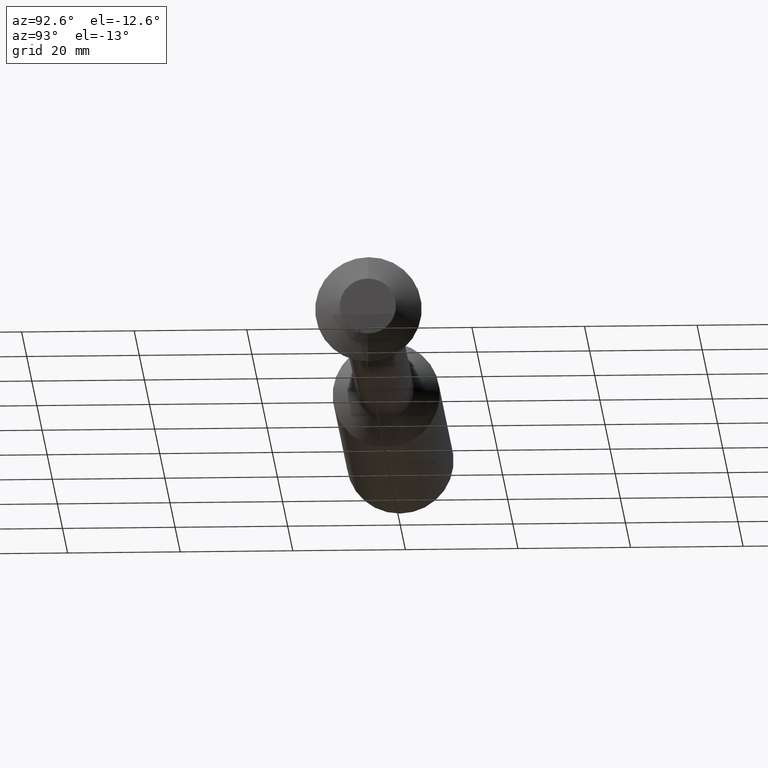
[diagram: clean part render]
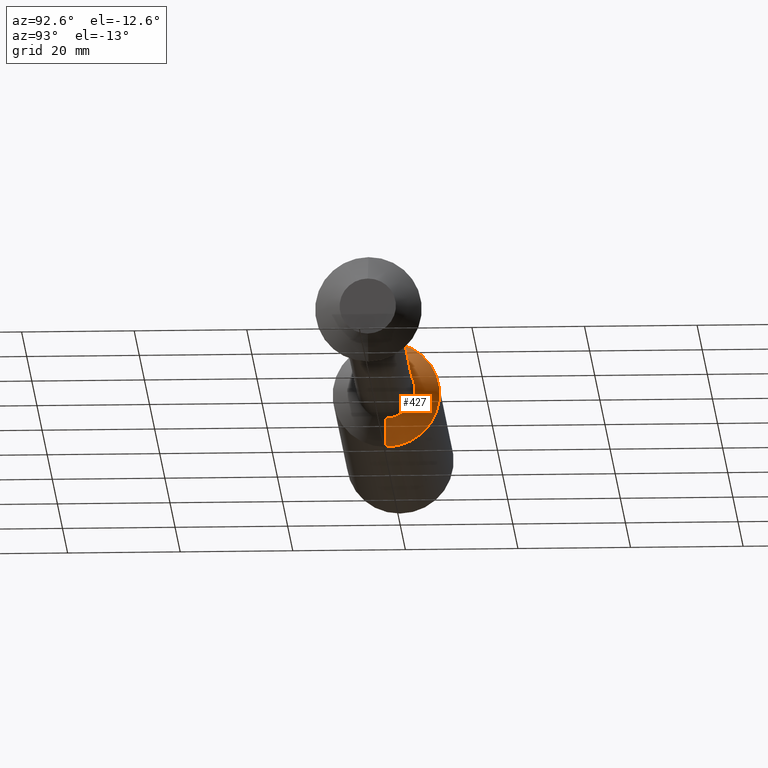
[diagram: same view with one face highlighted and labeled with its STEP entity id]
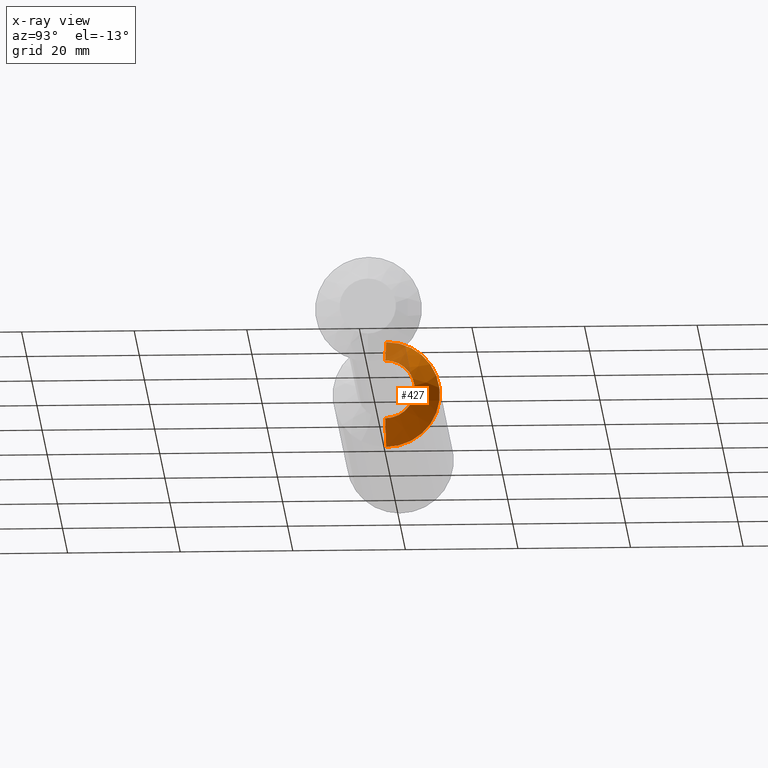
[diagram: x-ray of the same camera — body ghosted, the highlighted face saturated]
A machine part, auxiliary view. The second image highlights one B-rep face of the part: STEP entity #427.
The next image is the same camera in x-ray: the body ghosted, the highlighted face saturated — about 14% of this face is hidden behind the body in this view.
In plain terms, the highlighted conical surface has half-angle 45 deg.
Its self-contained STEP definition (entity closure, byte-faithful):
#1 = DIRECTION ( 'NONE',  ( 0.0000000000000000000, 0.0000000000000000000, 1.000000000000000000 ) ) ;
#6 = DIRECTION ( 'NONE',  ( -1.000000000000000000, -0.0000000000000000000, -0.0000000000000000000 ) ) ;
#34 = DIRECTION ( 'NONE',  ( -1.000000000000000000, -0.0000000000000000000, -0.0000000000000000000 ) ) ;
#37 = CIRCLE ( 'NONE', #231, 0.3748500000000000165 ) ;
#48 = CARTESIAN_POINT ( 'NONE',  ( 2.325964384686633579, 0.0000000000000000000, 0.0000000000000000000 ) ) ;
#61 = EDGE_CURVE ( 'NONE', #356, #206, #290, .T. ) ;
#68 = CARTESIAN_POINT ( 'NONE',  ( 2.325964384686633579, 0.0000000000000000000, 0.2073223304703355196 ) ) ;
#80 = DIRECTION ( 'NONE',  ( -0.7071067811865463515, 0.0000000000000000000, 0.7071067811865486830 ) ) ;
#91 = AXIS2_PLACEMENT_3D ( 'NONE', #48, #34, #1 ) ;
#104 = ORIENTED_EDGE ( 'NONE', *, *, #136, .T. ) ;
#109 = VECTOR ( 'NONE', #80, 39.37007874015748143 ) ;
#124 = CARTESIAN_POINT ( 'NONE',  ( 2.325964384686633579, 0.0000000000000000000, 0.2073223304703354364 ) ) ;
#130 = VERTEX_POINT ( 'NONE', #431 ) ;
#136 = EDGE_CURVE ( 'NONE', #206, #130, #476, .T. ) ;
#196 = FACE_OUTER_BOUND ( 'NONE', #492, .T. ) ;
#206 = VERTEX_POINT ( 'NONE', #351 ) ;
#218 = CARTESIAN_POINT ( 'NONE',  ( 2.325964384686633579, 0.0000000000000000000, 0.0000000000000000000 ) ) ;
#231 = AXIS2_PLACEMENT_3D ( 'NONE', #451, #6, #402 ) ;
#234 = ORIENTED_EDGE ( 'NONE', *, *, #375, .F. ) ;
#252 = DIRECTION ( 'NONE',  ( 0.0000000000000000000, 0.0000000000000000000, 1.000000000000000000 ) ) ;
#290 = CIRCLE ( 'NONE', #91, 0.2073223304703354364 ) ;
#295 = EDGE_CURVE ( 'NONE', #501, #130, #37, .T. ) ;
#304 = DIRECTION ( 'NONE',  ( -0.7071067811865463515, 8.659560562354947649E-17, -0.7071067811865486830 ) ) ;
#306 = DIRECTION ( 'NONE',  ( -1.000000000000000000, -0.0000000000000000000, -0.0000000000000000000 ) ) ;
#319 = LINE ( 'NONE', #124, #109 ) ;
#320 = ORIENTED_EDGE ( 'NONE', *, *, #295, .F. ) ;
#322 = CARTESIAN_POINT ( 'NONE',  ( 2.158436715156969221, 0.0000000000000000000, 0.3748500000000000165 ) ) ;
#351 = CARTESIAN_POINT ( 'NONE',  ( 2.325964384686633579, 2.538966284022662150E-17, -0.2073223304703355196 ) ) ;
#356 = VERTEX_POINT ( 'NONE', #68 ) ;
#359 = ORIENTED_EDGE ( 'NONE', *, *, #61, .T. ) ;
#375 = EDGE_CURVE ( 'NONE', #356, #501, #319, .T. ) ;
#389 = AXIS2_PLACEMENT_3D ( 'NONE', #218, #306, #252 ) ;
#393 = VECTOR ( 'NONE', #304, 39.37007874015748143 ) ;
#402 = DIRECTION ( 'NONE',  ( 0.0000000000000000000, 0.0000000000000000000, 1.000000000000000000 ) ) ;
#409 = CONICAL_SURFACE ( 'NONE', #389, 0.2073223304703354364, 0.7853981633974499443 ) ;
#416 = CARTESIAN_POINT ( 'NONE',  ( 2.325964384686633579, 2.538966284022660918E-17, -0.2073223304703354364 ) ) ;
#427 = ADVANCED_FACE ( 'NONE', ( #196 ), #409, .T. ) ;
#431 = CARTESIAN_POINT ( 'NONE',  ( 2.158436715156969221, 4.590588526603853748E-17, -0.3748500000000000165 ) ) ;
#451 = CARTESIAN_POINT ( 'NONE',  ( 2.158436715156969221, 0.0000000000000000000, 0.0000000000000000000 ) ) ;
#476 = LINE ( 'NONE', #416, #393 ) ;
#492 = EDGE_LOOP ( 'NONE', ( #359, #104, #320, #234 ) ) ;
#501 = VERTEX_POINT ( 'NONE', #322 ) ;